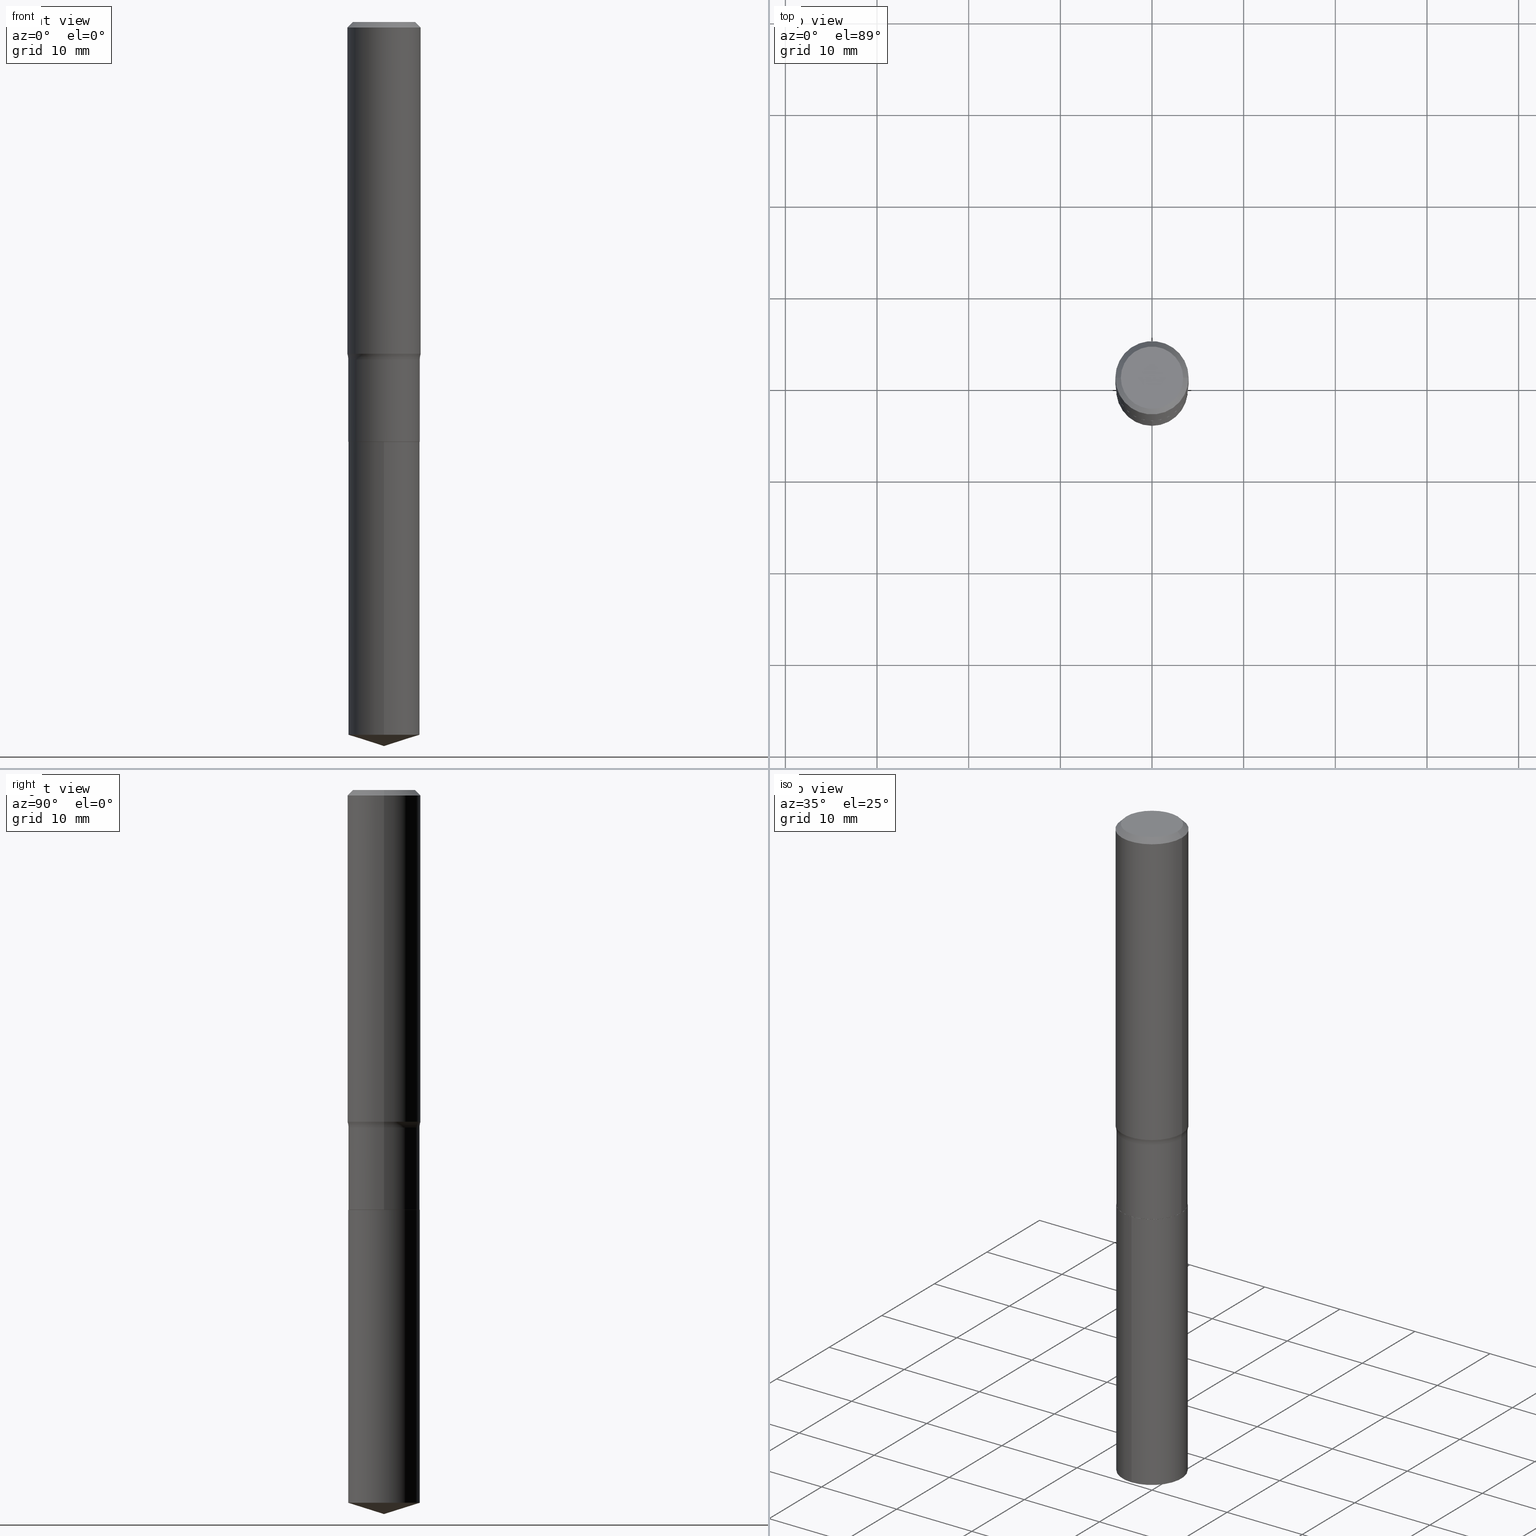
[diagram: canonical four-view strip — front | top / right | iso, engineering-drawing reading convention]
A machine part, canonical four-view strip (front | top / right | iso — engineering-drawing reading convention). The complete STEP part file that produces these views, byte-faithful:
ISO-10303-21;
HEADER;
FILE_DESCRIPTION (( 'STEP AP203' ),
    '1' );
FILE_NAME ('63180.STEP',
    '2024-04-19T14:58:40',
    ( '' ),
    ( '' ),
    'SwSTEP 2.0',
    'SolidWorks 2023',
    '' );
FILE_SCHEMA (( 'CONFIG_CONTROL_DESIGN' ));
ENDSEC;

DATA;
#1 = CIRCLE ( 'NONE', #385, 0.1535499999999999921 ) ;
#2 = DIRECTION ( 'NONE',  ( -6.982962677686265922E-15, -1.000000000000000000, 3.500519750498723365E-15 ) ) ;
#3 = CIRCLE ( 'NONE', #175, 0.1338749999999999940 ) ;
#4 = PERSON_AND_ORGANIZATION ( #279, #53 ) ;
#5 = DIRECTION ( 'NONE',  ( -2.445468806185136877E-29, 3.491481338843145188E-15, 1.000000000000000000 ) ) ;
#6 = AXIS2_PLACEMENT_3D ( 'NONE', #359, #178, #330 ) ;
#7 = AXIS2_PLACEMENT_3D ( 'NONE', #471, #406, #362 ) ;
#8 = DIRECTION ( 'NONE',  ( -2.445468806185136597E-29, 3.491481338843145583E-15, 1.000000000000000000 ) ) ;
#9 = CARTESIAN_POINT ( 'NONE',  ( 0.1530499999999999916, -7.364232439887959378E-15, -1.803100000000000147 ) ) ;
#10 = DIRECTION ( 'NONE',  ( 1.000000000000000000, -6.982962677686269077E-15, 0.000000000000000000 ) ) ;
#11 = FACE_OUTER_BOUND ( 'NONE', #187, .T. ) ;
#12 = CARTESIAN_POINT ( 'NONE',  ( 3.485753895980108822E-29, -4.976732742954058685E-15, -1.425392909189378665 ) ) ;
#13 = EDGE_LOOP ( 'NONE', ( #31, #67, #248, #415 ) ) ;
#14 = DIRECTION ( 'NONE',  ( -2.445468806185136597E-29, 3.491481338843145583E-15, 1.000000000000000000 ) ) ;
#15 = ORIENTED_EDGE ( 'NONE', *, *, #299, .F. ) ;
#16 = CC_DESIGN_APPROVAL ( #474, ( #238 ) ) ;
#17 = LOCAL_TIME ( 10, 58, 40.00000000000000000, #465 ) ;
#18 = EDGE_CURVE ( 'NONE', #383, #460, #448, .T. ) ;
#19 = CARTESIAN_POINT ( 'NONE',  ( 7.606661130427359075E-29, -1.085811109779870242E-14, -3.110199999999999854 ) ) ;
#20 = CYLINDRICAL_SURFACE ( 'NONE', #58, 0.1535499999999999921 ) ;
#21 = DIRECTION ( 'NONE',  ( 0.7071067811865451302, -7.319954787623248157E-15, -0.7071067811865499042 ) ) ;
#22 = MECHANICAL_CONTEXT ( 'NONE', #34, 'mechanical' ) ;
#23 = DIRECTION ( 'NONE',  ( -2.445468806185136597E-29, 3.491481338843145583E-15, 1.000000000000000000 ) ) ;
#24 = VERTEX_POINT ( 'NONE', #486 ) ;
#25 = CARTESIAN_POINT ( 'NONE',  ( 0.2315499999999999503, -6.679203801206931400E-15, -1.449899999999999967 ) ) ;
#26 = VERTEX_POINT ( 'NONE', #98 ) ;
#27 = LINE ( 'NONE', #480, #272 ) ;
#28 = EDGE_CURVE ( 'NONE', #426, #182, #255, .T. ) ;
#29 = VERTEX_POINT ( 'NONE', #194 ) ;
#30 = VECTOR ( 'NONE', #295, 39.37007874015748143 ) ;
#31 = ORIENTED_EDGE ( 'NONE', *, *, #306, .F. ) ;
#32 = DIRECTION ( 'NONE',  ( -6.982962677686266711E-15, -1.000000000000000000, 3.558252026915354491E-15 ) ) ;
#33 = ORIENTED_EDGE ( 'NONE', *, *, #74, .F. ) ;
#34 = APPLICATION_CONTEXT ( 'configuration controlled 3d designs of mechanical parts and assemblies' ) ;
#35 = ORIENTED_EDGE ( 'NONE', *, *, #291, .F. ) ;
#36 = DIRECTION ( 'NONE',  ( -2.445714465445102928E-29, 3.491129540800817350E-15, 1.000000000000000000 ) ) ;
#37 = PRODUCT_DEFINITION ( 'UNKNOWN', '', #48, #202 ) ;
#38 = AXIS2_PLACEMENT_3D ( 'NONE', #363, #328, #447 ) ;
#39 = VERTEX_POINT ( 'NONE', #161 ) ;
#40 = CIRCLE ( 'NONE', #190, 0.1338749999999999940 ) ;
#41 = EDGE_LOOP ( 'NONE', ( #192, #418, #228 ) ) ;
#42 = ORIENTED_EDGE ( 'NONE', *, *, #18, .T. ) ;
#43 = PERSON_AND_ORGANIZATION_ROLE ( 'design_supplier' ) ;
#44 = DIRECTION ( 'NONE',  ( -1.000000000000000000, 6.982962677686265922E-15, 0.000000000000000000 ) ) ;
#45 = DATE_TIME_ROLE ( 'classification_date' ) ;
#46 = AXIS2_PLACEMENT_3D ( 'NONE', #371, #173, #136 ) ;
#47 = PERSON_AND_ORGANIZATION_ROLE ( 'classification_officer' ) ;
#48 = PRODUCT_DEFINITION_FORMATION_WITH_SPECIFIED_SOURCE ( 'ANY', '', #446, .NOT_KNOWN. ) ;
#49 = APPROVAL_DATE_TIME ( #397, #404 ) ;
#50 = CARTESIAN_POINT ( 'NONE',  ( 4.409424804432420683E-29, -6.295490002068076239E-15, -1.803100000000000147 ) ) ;
#51 = EDGE_CURVE ( 'NONE', #311, #94, #485, .T. ) ;
#52 = CARTESIAN_POINT ( 'NONE',  ( 0.1530499999999999916, -7.364232439887959378E-15, -1.803100000000000147 ) ) ;
#53 = ORGANIZATION ( 'UNSPECIFIED', 'UNSPECIFIED', '' ) ;
#54 = ORIENTED_EDGE ( 'NONE', *, *, #224, .F. ) ;
#55 = EDGE_CURVE ( 'NONE', #275, #182, #115, .T. ) ;
#56 = CARTESIAN_POINT ( 'NONE',  ( 7.487811046509325449E-29, -1.068972542879178408E-14, -3.061785870967632217 ) ) ;
#57 = PLANE ( 'NONE',  #243 ) ;
#58 = AXIS2_PLACEMENT_3D ( 'NONE', #65, #246, #410 ) ;
#59 = LOCAL_TIME ( 10, 58, 40.00000000000000000, #218 ) ;
#60 = ADVANCED_FACE ( 'NONE', ( #11 ), #456, .T. ) ;
#61 = DIRECTION ( 'NONE',  ( -2.445468806185136597E-29, 3.491481338843145583E-15, 1.000000000000000000 ) ) ;
#62 = CC_DESIGN_PERSON_AND_ORGANIZATION_ASSIGNMENT ( #203, #84, ( #37 ) ) ;
#63 = APPROVAL_ROLE ( '' ) ;
#64 = DIRECTION ( 'NONE',  ( 1.000000000000000000, -6.982962677686267499E-15, 4.876176775795936353E-29 ) ) ;
#65 = CARTESIAN_POINT ( 'NONE',  ( 4.409424804432419562E-29, -6.295490002068075450E-15, -1.803099999999999925 ) ) ;
#66 = VERTEX_POINT ( 'NONE', #290 ) ;
#67 = ORIENTED_EDGE ( 'NONE', *, *, #51, .T. ) ;
#68 = DIRECTION ( 'NONE',  ( 1.000000000000000000, -6.982962677686265922E-15, 0.000000000000000000 ) ) ;
#69 = VECTOR ( 'NONE', #21, 39.37007874015748143 ) ;
#70 = CIRCLE ( 'NONE', #298, 0.07800000000000002764 ) ;
#71 = LINE ( 'NONE', #365, #364 ) ;
#72 = ORIENTED_EDGE ( 'NONE', *, *, #28, .T. ) ;
#73 = DIRECTION ( 'NONE',  ( 1.000000000000000000, -6.982962677686263555E-15, 0.000000000000000000 ) ) ;
#74 = EDGE_CURVE ( 'NONE', #426, #383, #402, .T. ) ;
#75 = ORIENTED_EDGE ( 'NONE', *, *, #277, .T. ) ;
#76 = DIMENSIONAL_EXPONENTS ( 1.000000000000000000, 0.000000000000000000, 0.000000000000000000, 0.000000000000000000, 0.000000000000000000, 0.000000000000000000, 0.000000000000000000 ) ;
#77 = CIRCLE ( 'NONE', #449, 0.1575000000000001676 ) ;
#78 = FACE_OUTER_BOUND ( 'NONE', #296, .T. ) ;
#79 = DIRECTION ( 'NONE',  ( -6.982962677686266711E-15, -1.000000000000000000, 3.558252026915354491E-15 ) ) ;
#80 = DIRECTION ( 'NONE',  ( -2.445714465445102928E-29, 3.491129540800817350E-15, 1.000000000000000000 ) ) ;
#81 = AXIS2_PLACEMENT_3D ( 'NONE', #251, #337, #64 ) ;
#82 = CIRCLE ( 'NONE', #106, 0.1535499999999999643 ) ;
#83 = DIRECTION ( 'NONE',  ( 1.000000000000000000, -6.982962677686268288E-15, 0.000000000000000000 ) ) ;
#84 = PERSON_AND_ORGANIZATION_ROLE ( 'creator' ) ;
#85 = DIRECTION ( 'NONE',  ( 2.445468806185136597E-29, -3.491481338843145583E-15, -1.000000000000000000 ) ) ;
#86 = CIRCLE ( 'NONE', #376, 0.1535499999999999921 ) ;
#87 = DIRECTION ( 'NONE',  ( 7.105427357601001859E-15, 1.000000000000000000, -3.491481338843145583E-15 ) ) ;
#88 = CONICAL_SURFACE ( 'NONE', #262, 124.8659371009143939, 1.265363707695890128 ) ;
#89 = ADVANCED_FACE ( 'NONE', ( #239 ), #396, .T. ) ;
#90 = CARTESIAN_POINT ( 'NONE',  ( -0.1575000000000000011, -1.410504685969955451E-15, -0.02362500000000014588 ) ) ;
#91 = DIRECTION ( 'NONE',  ( 1.000000000000000000, -6.982962677686266711E-15, 4.883557194083113462E-29 ) ) ;
#92 = PERSON_AND_ORGANIZATION ( #279, #53 ) ;
#93 = CARTESIAN_POINT ( 'NONE',  ( 0.000000000000000000, 0.000000000000000000, 0.000000000000000000 ) ) ;
#94 = VERTEX_POINT ( 'NONE', #52 ) ;
#95 = CARTESIAN_POINT ( 'NONE',  ( 0.1575000000000000011, -1.163014681279185964E-15, -0.02362500000000014588 ) ) ;
#96 = ORIENTED_EDGE ( 'NONE', *, *, #236, .T. ) ;
#97 = DIRECTION ( 'NONE',  ( -0.7071067811865451302, 2.468850131082231817E-15, -0.7071067811865499042 ) ) ;
#98 = CARTESIAN_POINT ( 'NONE',  ( -1.072233919158650810E-15, -0.1535500000000106224, -3.061785870967631773 ) ) ;
#99 = EDGE_LOOP ( 'NONE', ( #171, #96, #15, #347 ) ) ;
#100 = DIRECTION ( 'NONE',  ( -6.982962677686266711E-15, -1.000000000000000000, 3.558252026915354491E-15 ) ) ;
#101 = CARTESIAN_POINT ( 'NONE',  ( 0.1575000000000000844, -1.099816621735587677E-15, 7.679978421878603638E-30 ) ) ;
#102 = ORIENTED_EDGE ( 'NONE', *, *, #342, .T. ) ;
#103 = CC_DESIGN_PERSON_AND_ORGANIZATION_ASSIGNMENT ( #92, #43, ( #48 ) ) ;
#104 = DIRECTION ( 'NONE',  ( -2.445468806185136597E-29, 3.491481338843145583E-15, 1.000000000000000000 ) ) ;
#105 = TOROIDAL_SURFACE ( 'NONE', #318, 0.2315499999999999503, 0.07800000000000002764 ) ;
#106 = AXIS2_PLACEMENT_3D ( 'NONE', #489, #235, #154 ) ;
#107 = DIRECTION ( 'NONE',  ( -2.445468806185136597E-29, 3.491481338843145583E-15, 1.000000000000000000 ) ) ;
#108 = ORIENTED_EDGE ( 'NONE', *, *, #338, .T. ) ;
#109 = DIRECTION ( 'NONE',  ( 1.000000000000000000, -6.982962677686265922E-15, 0.000000000000000000 ) ) ;
#110 = CARTESIAN_POINT ( 'NONE',  ( 7.487811046509325449E-29, -1.068972542879178408E-14, -3.061785870967632217 ) ) ;
#111 = EDGE_LOOP ( 'NONE', ( #490, #343, #370, #388 ) ) ;
#112 = APPROVAL_STATUS ( 'not_yet_approved' ) ;
#113 = ADVANCED_FACE ( 'NONE', ( #470 ), #118, .T. ) ;
#114 = VECTOR ( 'NONE', #5, 39.37007874015748143 ) ;
#115 = LINE ( 'NONE', #95, #69 ) ;
#116 = VECTOR ( 'NONE', #332, 39.37007874015748143 ) ;
#117 = ORIENTED_EDGE ( 'NONE', *, *, #210, .T. ) ;
#118 = CYLINDRICAL_SURFACE ( 'NONE', #461, 0.1535499999999999643 ) ;
#119 = PERSON_AND_ORGANIZATION ( #279, #53 ) ;
#120 = DATE_AND_TIME ( #241, #225 ) ;
#121 = COORDINATED_UNIVERSAL_TIME_OFFSET ( 5, 0, .BEHIND. ) ;
#122 = CARTESIAN_POINT ( 'NONE',  ( 7.606668898693274979E-29, -1.085811109779870242E-14, -3.110199999999999854 ) ) ;
#123 = CALENDAR_DATE ( 2024, 19, 4 ) ;
#124 = CARTESIAN_POINT ( 'NONE',  ( 0.000000000000000000, 0.000000000000000000, 0.000000000000000000 ) ) ;
#125 = VECTOR ( 'NONE', #138, 39.37007874015748143 ) ;
#126 = CC_DESIGN_SECURITY_CLASSIFICATION ( #238, ( #48 ) ) ;
#127 = CARTESIAN_POINT ( 'NONE',  ( -0.1535499999999999643, -4.586983156534031207E-15, -1.449899999999999967 ) ) ;
#128 = APPLICATION_PROTOCOL_DEFINITION ( 'international standard', 'config_control_design', 1994, #223 ) ;
#129 = SECURITY_CLASSIFICATION_LEVEL ( 'unclassified' ) ;
#130 = CARTESIAN_POINT ( 'NONE',  ( -1.072233919158681970E-15, -0.1535500000000062926, -1.803099999999999481 ) ) ;
#131 = CARTESIAN_POINT ( 'NONE',  ( 0.000000000000000000, 0.000000000000000000, 0.000000000000000000 ) ) ;
#132 = EDGE_CURVE ( 'NONE', #66, #149, #211, .T. ) ;
#133 = AXIS2_PLACEMENT_3D ( 'NONE', #339, #304, #73 ) ;
#134 =( LENGTH_UNIT ( ) NAMED_UNIT ( * ) SI_UNIT ( $, .METRE. ) );
#135 = FACE_OUTER_BOUND ( 'NONE', #144, .T. ) ;
#136 = DIRECTION ( 'NONE',  ( 1.000000000000000000, -6.982962677686265922E-15, 0.000000000000000000 ) ) ;
#137 = DIRECTION ( 'NONE',  ( -2.445468806185136597E-29, 3.491481338843145583E-15, 1.000000000000000000 ) ) ;
#138 = DIRECTION ( 'NONE',  ( -2.445468806185136877E-29, 3.491481338843145188E-15, 1.000000000000000000 ) ) ;
#139 = EDGE_CURVE ( 'NONE', #426, #39, #472, .T. ) ;
#140 = ORIENTED_EDGE ( 'NONE', *, *, #242, .T. ) ;
#141 = VECTOR ( 'NONE', #292, 39.37007874015748143 ) ;
#142 = EDGE_LOOP ( 'NONE', ( #268, #429 ) ) ;
#143 = PLANE ( 'NONE',  #308 ) ;
#144 = EDGE_LOOP ( 'NONE', ( #259, #305, #72, #35 ) ) ;
#145 = DIRECTION ( 'NONE',  ( -2.445468806185136597E-29, 3.491481338843145583E-15, 1.000000000000000000 ) ) ;
#146 = ORIENTED_EDGE ( 'NONE', *, *, #468, .T. ) ;
#147 = EDGE_CURVE ( 'NONE', #327, #189, #443, .T. ) ;
#148 = CARTESIAN_POINT ( 'NONE',  ( 4.409424804432419562E-29, -6.295490002068075450E-15, -1.803099999999999925 ) ) ;
#149 = VERTEX_POINT ( 'NONE', #324 ) ;
#150 = DATE_AND_TIME ( #263, #17 ) ;
#151 = CARTESIAN_POINT ( 'NONE',  ( -0.1530499999999999916, -5.205355117813131565E-15, -1.803100000000000147 ) ) ;
#152 = ORIENTED_EDGE ( 'NONE', *, *, #299, .T. ) ;
#153 = ADVANCED_FACE ( 'NONE', ( #135 ), #249, .T. ) ;
#154 = DIRECTION ( 'NONE',  ( 1.000000000000000000, -6.982962677686263555E-15, 0.000000000000000000 ) ) ;
#155 = VERTEX_POINT ( 'NONE', #90 ) ;
#156 = CARTESIAN_POINT ( 'NONE',  ( 4.408202070029327321E-29, -6.293744261398653946E-15, -1.802599999999999980 ) ) ;
#157 = AXIS2_PLACEMENT_3D ( 'NONE', #156, #215, #10 ) ;
#158 = AXIS2_PLACEMENT_3D ( 'NONE', #384, #271, #432 ) ;
#159 = APPROVAL_ROLE ( '' ) ;
#160 = ADVANCED_FACE ( 'NONE', ( #444 ), #105, .F. ) ;
#161 = CARTESIAN_POINT ( 'NONE',  ( -0.1575000000000001676, -3.857627934131899504E-15, -1.425392909189378665 ) ) ;
#162 =( NAMED_UNIT ( * ) PLANE_ANGLE_UNIT ( ) SI_UNIT ( $, .RADIAN. ) );
#163 = DIRECTION ( 'NONE',  ( -2.445468806185136597E-29, 3.491481338843145583E-15, 1.000000000000000000 ) ) ;
#164 = AXIS2_PLACEMENT_3D ( 'NONE', #110, #425, #79 ) ;
#165 = DATE_TIME_ROLE ( 'creation_date' ) ;
#166 = DIRECTION ( 'NONE',  ( -1.000000000000000000, 7.105427357601001859E-15, 0.000000000000000000 ) ) ;
#167 = UNCERTAINTY_MEASURE_WITH_UNIT (LENGTH_MEASURE( 1.000000000000000082E-05 ), #200, 'distance_accuracy_value', 'NONE');
#168 = ADVANCED_FACE ( 'NONE', ( #293 ), #355, .F. ) ;
#169 = CARTESIAN_POINT ( 'NONE',  ( 0.1535499999999999643, -6.134532712347401777E-15, -1.449899999999999967 ) ) ;
#170 = ADVANCED_FACE ( 'NONE', ( #451 ), #20, .T. ) ;
#171 = ORIENTED_EDGE ( 'NONE', *, *, #139, .T. ) ;
#172 = CARTESIAN_POINT ( 'NONE',  ( 1.091038370759677758E-15, 0.1535499999999936915, -1.803100000000000591 ) ) ;
#173 = DIRECTION ( 'NONE',  ( -2.445468806185136597E-29, 3.491481338843145583E-15, 1.000000000000000000 ) ) ;
#174 = AXIS2_PLACEMENT_3D ( 'NONE', #469, #440, #379 ) ;
#175 = AXIS2_PLACEMENT_3D ( 'NONE', #357, #14, #282 ) ;
#176 = EDGE_LOOP ( 'NONE', ( #302, #146, #108, #33 ) ) ;
#177 = CARTESIAN_POINT ( 'NONE',  ( 5.777420054612421104E-31, -8.248624663016984002E-17, -0.02362500000000014588 ) ) ;
#178 = DIRECTION ( 'NONE',  ( -2.445468806185136597E-29, 3.491481338843145583E-15, 1.000000000000000000 ) ) ;
#179 = LINE ( 'NONE', #221, #116 ) ;
#180 = FACE_OUTER_BOUND ( 'NONE', #99, .T. ) ;
#181 = CIRCLE ( 'NONE', #462, 0.1535499999999999921 ) ;
#182 = VERTEX_POINT ( 'NONE', #219 ) ;
#183 = DIRECTION ( 'NONE',  ( -2.445468806185136877E-29, 3.491481338843145188E-15, 1.000000000000000000 ) ) ;
#184 = ORIENTED_EDGE ( 'NONE', *, *, #55, .F. ) ;
#185 = DIRECTION ( 'NONE',  ( -6.659769872151628144E-15, -0.9537169507482261555, 0.3007057995042753396 ) ) ;
#186 = ORIENTED_EDGE ( 'NONE', *, *, #191, .T. ) ;
#187 = EDGE_LOOP ( 'NONE', ( #479, #226, #244, #340 ) ) ;
#188 = ORIENTED_EDGE ( 'NONE', *, *, #242, .F. ) ;
#189 = VERTEX_POINT ( 'NONE', #407 ) ;
#190 = AXIS2_PLACEMENT_3D ( 'NONE', #341, #61, #217 ) ;
#191 = EDGE_CURVE ( 'NONE', #26, #29, #245, .T. ) ;
#192 = ORIENTED_EDGE ( 'NONE', *, *, #277, .F. ) ;
#193 = CARTESIAN_POINT ( 'NONE',  ( -0.2315499999999999503, -3.417037088536164989E-15, -1.449899999999999967 ) ) ;
#194 = CARTESIAN_POINT ( 'NONE',  ( -1.072233919158681970E-15, -0.1535500000000062926, -1.803099999999999481 ) ) ;
#195 = ADVANCED_FACE ( 'NONE', ( #212 ), #143, .F. ) ;
#196 = COORDINATED_UNIVERSAL_TIME_OFFSET ( 5, 0, .BEHIND. ) ;
#197 = DIRECTION ( 'NONE',  ( -6.982962677686266711E-15, -1.000000000000000000, 3.491481338843145583E-15 ) ) ;
#198 = AXIS2_PLACEMENT_3D ( 'NONE', #25, #197, #83 ) ;
#199 = CIRCLE ( 'NONE', #164, 0.1535499999999999921 ) ;
#200 =( CONVERSION_BASED_UNIT ( 'INCH', #475 ) LENGTH_UNIT ( ) NAMED_UNIT ( #76 ) );
#201 = DIRECTION ( 'NONE',  ( 6.776566513254254982E-15, 0.9537169507482283759, 0.3007057995042687337 ) ) ;
#202 = DESIGN_CONTEXT ( 'detailed design', #223, 'design' ) ;
#203 = PERSON_AND_ORGANIZATION ( #279, #53 ) ;
#204 = ADVANCED_FACE ( 'NONE', ( #180 ), #377, .T. ) ;
#205 =( NAMED_UNIT ( * ) SI_UNIT ( $, .STERADIAN. ) SOLID_ANGLE_UNIT ( ) );
#206 = DIRECTION ( 'NONE',  ( 0.000000000000000000, 0.000000000000000000, 1.000000000000000000 ) ) ;
#207 = DIRECTION ( 'NONE',  ( 1.000000000000000000, -6.982962677686266711E-15, 4.883557194083113462E-29 ) ) ;
#208 = VECTOR ( 'NONE', #478, 39.37007874015748143 ) ;
#209 = EDGE_CURVE ( 'NONE', #149, #460, #71, .T. ) ;
#210 = EDGE_CURVE ( 'NONE', #149, #66, #86, .T. ) ;
#211 = CIRCLE ( 'NONE', #157, 0.1535499999999999921 ) ;
#212 = FACE_OUTER_BOUND ( 'NONE', #300, .T. ) ;
#213 =( GEOMETRIC_REPRESENTATION_CONTEXT ( 3 ) GLOBAL_UNCERTAINTY_ASSIGNED_CONTEXT ( ( #167 ) ) GLOBAL_UNIT_ASSIGNED_CONTEXT ( ( #200, #162, #205 ) ) REPRESENTATION_CONTEXT ( 'NONE', 'WORKASPACE' ) );
#214 = CARTESIAN_POINT ( 'NONE',  ( -5.014852121625163022E-47, 7.159879756154476955E-33, 2.050671065172241055E-18 ) ) ;
#215 = DIRECTION ( 'NONE',  ( -2.445468806185136597E-29, 3.491481338843145583E-15, 1.000000000000000000 ) ) ;
#216 = ADVANCED_FACE ( 'NONE', ( #307 ), #280, .F. ) ;
#217 = DIRECTION ( 'NONE',  ( 1.000000000000000000, -6.982962677686266711E-15, 4.876170806578254279E-29 ) ) ;
#218 = COORDINATED_UNIVERSAL_TIME_OFFSET ( 5, 0, .BEHIND. ) ;
#219 = CARTESIAN_POINT ( 'NONE',  ( 0.1575000000000000011, -1.182302868365756679E-15, -0.02362500000000014588 ) ) ;
#220 = VERTEX_POINT ( 'NONE', #19 ) ;
#221 = CARTESIAN_POINT ( 'NONE',  ( -0.1530499999999999916, -5.208004344987242767E-15, -1.803100000000000147 ) ) ;
#222 = PRODUCT_RELATED_PRODUCT_CATEGORY ( 'detail', '', ( #446 ) ) ;
#223 = APPLICATION_CONTEXT ( 'configuration controlled 3d designs of mechanical parts and assemblies' ) ;
#224 = EDGE_CURVE ( 'NONE', #327, #26, #1, .T. ) ;
#225 = LOCAL_TIME ( 10, 58, 40.00000000000000000, #121 ) ;
#226 = ORIENTED_EDGE ( 'NONE', *, *, #306, .T. ) ;
#227 = LINE ( 'NONE', #484, #441 ) ;
#228 = ORIENTED_EDGE ( 'NONE', *, *, #333, .F. ) ;
#229 = ORIENTED_EDGE ( 'NONE', *, *, #286, .F. ) ;
#230 = CLOSED_SHELL ( 'NONE', ( #60, #481, #204, #216, #113, #270, #160, #153, #467, #389, #168, #405 ) ) ;
#231 = VECTOR ( 'NONE', #201, 39.37007874015747433 ) ;
#232 = DIRECTION ( 'NONE',  ( -2.445468806185136597E-29, 3.491481338843145583E-15, 1.000000000000000000 ) ) ;
#233 = CARTESIAN_POINT ( 'NONE',  ( 4.409424804432420683E-29, -6.295490002068076239E-15, -1.803100000000000147 ) ) ;
#234 = CARTESIAN_POINT ( 'NONE',  ( 5.777420054612421104E-31, -8.248624663016984002E-17, -0.02362500000000014588 ) ) ;
#235 = DIRECTION ( 'NONE',  ( -2.445468806185136597E-29, 3.491481338843145583E-15, 1.000000000000000000 ) ) ;
#236 = EDGE_CURVE ( 'NONE', #39, #155, #445, .T. ) ;
#237 = APPROVAL_PERSON_ORGANIZATION ( #264, #474, #63 ) ;
#238 = SECURITY_CLASSIFICATION ( '', '', #129 ) ;
#239 = FACE_OUTER_BOUND ( 'NONE', #254, .T. ) ;
#240 = FACE_OUTER_BOUND ( 'NONE', #142, .T. ) ;
#241 = CALENDAR_DATE ( 2024, 19, 4 ) ;
#242 = EDGE_CURVE ( 'NONE', #24, #155, #450, .T. ) ;
#243 = AXIS2_PLACEMENT_3D ( 'NONE', #214, #400, #322 ) ;
#244 = ORIENTED_EDGE ( 'NONE', *, *, #132, .F. ) ;
#245 = LINE ( 'NONE', #130, #208 ) ;
#246 = DIRECTION ( 'NONE',  ( -2.445714465445102928E-29, 3.491129540800817350E-15, 1.000000000000000000 ) ) ;
#247 = EDGE_CURVE ( 'NONE', #66, #383, #227, .T. ) ;
#248 = ORIENTED_EDGE ( 'NONE', *, *, #380, .T. ) ;
#249 = CYLINDRICAL_SURFACE ( 'NONE', #38, 0.1575000000000000844 ) ;
#250 = DIRECTION ( 'NONE',  ( -2.445714465445102928E-29, 3.491129540800817350E-15, 1.000000000000000000 ) ) ;
#251 = CARTESIAN_POINT ( 'NONE',  ( 0.000000000000000000, 0.000000000000000000, 0.000000000000000000 ) ) ;
#252 = APPROVAL_STATUS ( 'not_yet_approved' ) ;
#253 = DIRECTION ( 'NONE',  ( 2.445714465445102087E-29, -3.491129540800817745E-15, -1.000000000000000000 ) ) ;
#254 = EDGE_LOOP ( 'NONE', ( #336, #75, #54 ) ) ;
#255 = LINE ( 'NONE', #101, #114 ) ;
#256 = ORIENTED_EDGE ( 'NONE', *, *, #132, .T. ) ;
#257 = DIRECTION ( 'NONE',  ( 6.982962677686265922E-15, 1.000000000000000000, -3.491129540800817745E-15 ) ) ;
#258 = ORIENTED_EDGE ( 'NONE', *, *, #18, .F. ) ;
#259 = ORIENTED_EDGE ( 'NONE', *, *, #236, .F. ) ;
#260 = CARTESIAN_POINT ( 'NONE',  ( -8.868175289830015705E-28, 1.265872994885691818E-13, 36.25987874015748247 ) ) ;
#261 = CLOSED_SHELL ( 'NONE', ( #170, #436, #89, #325, #195 ) ) ;
#262 = AXIS2_PLACEMENT_3D ( 'NONE', #278, #80, #317 ) ;
#263 = CALENDAR_DATE ( 2024, 19, 4 ) ;
#264 = PERSON_AND_ORGANIZATION ( #279, #53 ) ;
#265 = ORIENTED_EDGE ( 'NONE', *, *, #147, .F. ) ;
#266 = ORIENTED_EDGE ( 'NONE', *, *, #310, .T. ) ;
#267 = CC_DESIGN_PERSON_AND_ORGANIZATION_ASSIGNMENT ( #119, #47, ( #238 ) ) ;
#268 = ORIENTED_EDGE ( 'NONE', *, *, #286, .T. ) ;
#269 = DIRECTION ( 'NONE',  ( -2.445714465445102928E-29, 3.491129540800817350E-15, 1.000000000000000000 ) ) ;
#270 = ADVANCED_FACE ( 'NONE', ( #303 ), #409, .T. ) ;
#271 = DIRECTION ( 'NONE',  ( -2.445468806185136597E-29, 3.491481338843145583E-15, 1.000000000000000000 ) ) ;
#272 = VECTOR ( 'NONE', #185, 39.37007874015748143 ) ;
#273 = COORDINATED_UNIVERSAL_TIME_OFFSET ( 5, 0, .BEHIND. ) ;
#274 = CIRCLE ( 'NONE', #158, 0.1530499999999999916 ) ;
#275 = VERTEX_POINT ( 'NONE', #382 ) ;
#276 = DATE_AND_TIME ( #123, #422 ) ;
#277 = EDGE_CURVE ( 'NONE', #220, #26, #27, .T. ) ;
#278 = CARTESIAN_POINT ( 'NONE',  ( -8.868175289830015705E-28, 1.265872994885691818E-13, 36.25987874015748247 ) ) ;
#279 = PERSON ( 'UNSPECIFIED', 'UNSPECIFIED', 'UNSPECIFIED', ('UNSPECIFIED'), ('UNSPECIFIED'), ('UNSPECIFIED') ) ;
#280 = TOROIDAL_SURFACE ( 'NONE', #344, 0.2315499999999999503, 0.07800000000000002764 ) ;
#281 = CC_DESIGN_APPROVAL ( #368, ( #48 ) ) ;
#282 = DIRECTION ( 'NONE',  ( 1.000000000000000000, -6.982962677686266711E-15, 4.876170806578254279E-29 ) ) ;
#283 = APPROVAL_STATUS ( 'not_yet_approved' ) ;
#284 = CALENDAR_DATE ( 2024, 19, 4 ) ;
#285 = AXIS2_PLACEMENT_3D ( 'NONE', #93, #411, #297 ) ;
#286 = EDGE_CURVE ( 'NONE', #24, #275, #40, .T. ) ;
#287 = AXIS2_PLACEMENT_3D ( 'NONE', #234, #390, #44 ) ;
#288 = DIRECTION ( 'NONE',  ( -1.000000000000000000, 6.982962677686265922E-15, 0.000000000000000000 ) ) ;
#289 = LINE ( 'NONE', #9, #141 ) ;
#290 = CARTESIAN_POINT ( 'NONE',  ( 0.1535499999999999921, -7.365978180557380092E-15, -1.802599999999999980 ) ) ;
#291 = EDGE_CURVE ( 'NONE', #155, #182, #356, .T. ) ;
#292 = DIRECTION ( 'NONE',  ( 0.7071067811864267805, -2.468850131080992517E-15, 0.7071067811866682540 ) ) ;
#293 = FACE_OUTER_BOUND ( 'NONE', #424, .T. ) ;
#294 = FACE_OUTER_BOUND ( 'NONE', #13, .T. ) ;
#295 = DIRECTION ( 'NONE',  ( -2.445714465445102928E-29, 3.491129540800817745E-15, 1.000000000000000000 ) ) ;
#296 = EDGE_LOOP ( 'NONE', ( #184, #229, #140, #421 ) ) ;
#297 = DIRECTION ( 'NONE',  ( 1.000000000000000000, -6.982962677686267499E-15, 4.876176775795935793E-29 ) ) ;
#298 = AXIS2_PLACEMENT_3D ( 'NONE', #193, #87, #166 ) ;
#299 = EDGE_CURVE ( 'NONE', #182, #155, #386, .T. ) ;
#300 = EDGE_LOOP ( 'NONE', ( #102, #266 ) ) ;
#301 = CARTESIAN_POINT ( 'NONE',  ( 4.408202070029327321E-29, -6.293744261398653946E-15, -1.802599999999999980 ) ) ;
#302 = ORIENTED_EDGE ( 'NONE', *, *, #354, .F. ) ;
#303 = FACE_OUTER_BOUND ( 'NONE', #312, .T. ) ;
#304 = DIRECTION ( 'NONE',  ( -2.445468806185136597E-29, 3.491481338843145583E-15, 1.000000000000000000 ) ) ;
#305 = ORIENTED_EDGE ( 'NONE', *, *, #354, .T. ) ;
#306 = EDGE_CURVE ( 'NONE', #311, #149, #179, .T. ) ;
#307 = FACE_OUTER_BOUND ( 'NONE', #176, .T. ) ;
#308 = AXIS2_PLACEMENT_3D ( 'NONE', #329, #253, #257 ) ;
#309 = AXIS2_PLACEMENT_3D ( 'NONE', #233, #107, #109 ) ;
#310 = EDGE_CURVE ( 'NONE', #189, #29, #181, .T. ) ;
#311 = VERTEX_POINT ( 'NONE', #151 ) ;
#312 = EDGE_LOOP ( 'NONE', ( #361, #117, #381, #348 ) ) ;
#313 = CONICAL_SURFACE ( 'NONE', #287, 0.1575000000000000011, 0.7853981633974449483 ) ;
#314 = CC_DESIGN_DATE_AND_TIME_ASSIGNMENT ( #150, #45, ( #238 ) ) ;
#315 = CALENDAR_DATE ( 2024, 19, 4 ) ;
#316 = DIRECTION ( 'NONE',  ( 1.000000000000000000, -6.982962677686265922E-15, 0.000000000000000000 ) ) ;
#317 = DIRECTION ( 'NONE',  ( -6.982962677686265922E-15, -1.000000000000000000, 3.500519750498723365E-15 ) ) ;
#318 = AXIS2_PLACEMENT_3D ( 'NONE', #367, #163, #207 ) ;
#319 = AXIS2_PLACEMENT_3D ( 'NONE', #369, #145, #420 ) ;
#320 = DIRECTION ( 'NONE',  ( 1.000000000000000000, -6.982962677686267499E-15, 0.000000000000000000 ) ) ;
#321 = PERSON_AND_ORGANIZATION ( #279, #53 ) ;
#322 = DIRECTION ( 'NONE',  ( -1.000000000000000000, 6.982962677686265922E-15, -4.876176775795935793E-29 ) ) ;
#323 = ORIENTED_EDGE ( 'NONE', *, *, #423, .F. ) ;
#324 = CARTESIAN_POINT ( 'NONE',  ( -0.1535500000000000198, -4.586983156534031207E-15, -1.802599999999999980 ) ) ;
#325 = ADVANCED_FACE ( 'NONE', ( #434 ), #438, .T. ) ;
#326 = AXIS2_PLACEMENT_3D ( 'NONE', #177, #85, #288 ) ;
#327 = VERTEX_POINT ( 'NONE', #458 ) ;
#328 = DIRECTION ( 'NONE',  ( -2.445468806185136597E-29, 3.491481338843145583E-15, 1.000000000000000000 ) ) ;
#329 = CARTESIAN_POINT ( 'NONE',  ( 4.409424804432419562E-29, -6.295490002068075450E-15, -1.803099999999999925 ) ) ;
#330 = DIRECTION ( 'NONE',  ( 1.000000000000000000, -6.982962677686267499E-15, 0.000000000000000000 ) ) ;
#331 = ORIENTED_EDGE ( 'NONE', *, *, #55, .T. ) ;
#332 = DIRECTION ( 'NONE',  ( -0.7071067811864267805, 7.493145998869918709E-15, 0.7071067811866682540 ) ) ;
#333 = EDGE_CURVE ( 'NONE', #26, #327, #199, .T. ) ;
#334 = LOCAL_TIME ( 10, 58, 40.00000000000000000, #196 ) ;
#335 = ORIENTED_EDGE ( 'NONE', *, *, #468, .F. ) ;
#336 = ORIENTED_EDGE ( 'NONE', *, *, #439, .F. ) ;
#337 = DIRECTION ( 'NONE',  ( -2.445468806185136597E-29, 3.491481338843145583E-15, 1.000000000000000000 ) ) ;
#338 = EDGE_CURVE ( 'NONE', #460, #383, #82, .T. ) ;
#339 = CARTESIAN_POINT ( 'NONE',  ( 3.545685222087829505E-29, -5.062298793188676419E-15, -1.449899999999999967 ) ) ;
#340 = ORIENTED_EDGE ( 'NONE', *, *, #380, .F. ) ;
#341 = CARTESIAN_POINT ( 'NONE',  ( -1.002970424325032604E-46, 1.431975951230895391E-32, 4.101342130344482109E-18 ) ) ;
#342 = EDGE_CURVE ( 'NONE', #29, #189, #398, .T. ) ;
#343 = ORIENTED_EDGE ( 'NONE', *, *, #147, .T. ) ;
#344 = AXIS2_PLACEMENT_3D ( 'NONE', #455, #104, #91 ) ;
#345 = AXIS2_PLACEMENT_3D ( 'NONE', #435, #269, #430 ) ;
#346 = ADVANCED_BREP_SHAPE_REPRESENTATION ( '63180', ( #387, #378, #457 ), #213 ) ;
#347 = ORIENTED_EDGE ( 'NONE', *, *, #28, .F. ) ;
#348 = ORIENTED_EDGE ( 'NONE', *, *, #338, .F. ) ;
#349 = CC_DESIGN_PERSON_AND_ORGANIZATION_ASSIGNMENT ( #351, #399, ( #48 ) ) ;
#350 = CONICAL_SURFACE ( 'NONE', #309, 0.1530499999999999916, 0.7853981633972775267 ) ;
#351 = PERSON_AND_ORGANIZATION ( #279, #53 ) ;
#352 = CARTESIAN_POINT ( 'NONE',  ( 0.1575000000000001676, -6.076549364689645377E-15, -1.425392909189378665 ) ) ;
#353 = APPROVAL_ROLE ( '' ) ;
#354 = EDGE_CURVE ( 'NONE', #39, #426, #77, .T. ) ;
#355 = PLANE ( 'NONE',  #174 ) ;
#356 = CIRCLE ( 'NONE', #319, 0.1575000000000000011 ) ;
#357 = CARTESIAN_POINT ( 'NONE',  ( -1.002970424325032604E-46, 1.431975951230895391E-32, 4.101342130344482109E-18 ) ) ;
#358 = ORIENTED_EDGE ( 'NONE', *, *, #360, .F. ) ;
#359 = CARTESIAN_POINT ( 'NONE',  ( 3.485753895980108822E-29, -4.976732742954058685E-15, -1.425392909189378665 ) ) ;
#360 = EDGE_CURVE ( 'NONE', #275, #24, #3, .T. ) ;
#361 = ORIENTED_EDGE ( 'NONE', *, *, #209, .F. ) ;
#362 = DIRECTION ( 'NONE',  ( -6.982962677686266711E-15, -1.000000000000000000, 3.558252026915354491E-15 ) ) ;
#363 = CARTESIAN_POINT ( 'NONE',  ( 0.000000000000000000, 0.000000000000000000, 0.000000000000000000 ) ) ;
#364 = VECTOR ( 'NONE', #183, 39.37007874015748143 ) ;
#365 = CARTESIAN_POINT ( 'NONE',  ( -0.1535499999999999643, 1.091038370759633582E-15, -7.553024831086406471E-30 ) ) ;
#366 = EDGE_LOOP ( 'NONE', ( #265, #476, #186, #375 ) ) ;
#367 = CARTESIAN_POINT ( 'NONE',  ( 3.545685222087829505E-29, -5.062298793188676419E-15, -1.449899999999999967 ) ) ;
#368 = APPROVAL ( #112, 'UNSPECIFIED' ) ;
#369 = CARTESIAN_POINT ( 'NONE',  ( 5.777420054612421104E-31, -8.248624663016984002E-17, -0.02362500000000014588 ) ) ;
#370 = ORIENTED_EDGE ( 'NONE', *, *, #342, .F. ) ;
#371 = CARTESIAN_POINT ( 'NONE',  ( 4.409424804432420683E-29, -6.295490002068076239E-15, -1.803100000000000147 ) ) ;
#372 = PERSON_AND_ORGANIZATION ( #279, #53 ) ;
#373 = EDGE_LOOP ( 'NONE', ( #358, #331, #152, #188 ) ) ;
#374 = DIRECTION ( 'NONE',  ( -2.445468806185136877E-29, 3.491481338843145188E-15, 1.000000000000000000 ) ) ;
#375 = ORIENTED_EDGE ( 'NONE', *, *, #310, .F. ) ;
#376 = AXIS2_PLACEMENT_3D ( 'NONE', #301, #477, #414 ) ;
#377 = CYLINDRICAL_SURFACE ( 'NONE', #81, 0.1575000000000000844 ) ;
#378 = MANIFOLD_SOLID_BREP ( 'Body-Move/Copy2[2]', #230 ) ;
#379 = DIRECTION ( 'NONE',  ( 1.000000000000000000, -6.982962677686265922E-15, 4.876176775795935793E-29 ) ) ;
#380 = EDGE_CURVE ( 'NONE', #94, #66, #289, .T. ) ;
#381 = ORIENTED_EDGE ( 'NONE', *, *, #247, .T. ) ;
#382 = CARTESIAN_POINT ( 'NONE',  ( 0.1338749999999999940, -1.040731925365424925E-15, 4.101342130351390035E-18 ) ) ;
#383 = VERTEX_POINT ( 'NONE', #169 ) ;
#384 = CARTESIAN_POINT ( 'NONE',  ( 4.409424804432420683E-29, -6.295490002068076239E-15, -1.803100000000000147 ) ) ;
#385 = AXIS2_PLACEMENT_3D ( 'NONE', #56, #36, #100 ) ;
#386 = CIRCLE ( 'NONE', #403, 0.1575000000000000011 ) ;
#387 = MANIFOLD_SOLID_BREP ( 'Body-Move/Copy2[1]', #261 ) ;
#388 = ORIENTED_EDGE ( 'NONE', *, *, #191, .F. ) ;
#389 = ADVANCED_FACE ( 'NONE', ( #240 ), #57, .F. ) ;
#390 = DIRECTION ( 'NONE',  ( 2.445468806185136597E-29, -3.491481338843145583E-15, -1.000000000000000000 ) ) ;
#391 = DIRECTION ( 'NONE',  ( -2.445714465445102928E-29, 3.491129540800817350E-15, 1.000000000000000000 ) ) ;
#392 = APPROVAL_DATE_TIME ( #433, #474 ) ;
#393 = ORIENTED_EDGE ( 'NONE', *, *, #247, .F. ) ;
#394 = APPROVAL_DATE_TIME ( #276, #368 ) ;
#395 = LINE ( 'NONE', #122, #231 ) ;
#396 = CONICAL_SURFACE ( 'NONE', #466, 124.8659371009143939, 1.265363707695890128 ) ;
#397 = DATE_AND_TIME ( #315, #334 ) ;
#398 = CIRCLE ( 'NONE', #7, 0.1535499999999999921 ) ;
#399 = PERSON_AND_ORGANIZATION_ROLE ( 'creator' ) ;
#400 = DIRECTION ( 'NONE',  ( 2.438088387897960049E-29, -3.491481338843145188E-15, -1.000000000000000000 ) ) ;
#401 = APPLICATION_PROTOCOL_DEFINITION ( 'international standard', 'config_control_design', 1994, #34 ) ;
#402 = CIRCLE ( 'NONE', #198, 0.07800000000000002764 ) ;
#403 = AXIS2_PLACEMENT_3D ( 'NONE', #453, #23, #68 ) ;
#404 = APPROVAL ( #283, 'UNSPECIFIED' ) ;
#405 = ADVANCED_FACE ( 'NONE', ( #294 ), #350, .T. ) ;
#406 = DIRECTION ( 'NONE',  ( -2.445714465445102928E-29, 3.491129540800817350E-15, 1.000000000000000000 ) ) ;
#407 = CARTESIAN_POINT ( 'NONE',  ( 1.091038370759708918E-15, 0.1535499999999937193, -1.803100000000000591 ) ) ;
#408 = ORIENTED_EDGE ( 'NONE', *, *, #139, .F. ) ;
#409 = CYLINDRICAL_SURFACE ( 'NONE', #285, 0.1535499999999999643 ) ;
#410 = DIRECTION ( 'NONE',  ( -6.982962677686266711E-15, -1.000000000000000000, 3.558252026915354491E-15 ) ) ;
#411 = DIRECTION ( 'NONE',  ( -2.445468806185136597E-29, 3.491481338843145583E-15, 1.000000000000000000 ) ) ;
#412 = FACE_OUTER_BOUND ( 'NONE', #373, .T. ) ;
#413 = PRODUCT_DEFINITION_SHAPE ( 'NONE', 'NONE',  #37 ) ;
#414 = DIRECTION ( 'NONE',  ( 1.000000000000000000, -6.982962677686269077E-15, 0.000000000000000000 ) ) ;
#415 = ORIENTED_EDGE ( 'NONE', *, *, #210, .F. ) ;
#416 = CC_DESIGN_PERSON_AND_ORGANIZATION_ASSIGNMENT ( #372, #463, ( #446 ) ) ;
#417 = CARTESIAN_POINT ( 'NONE',  ( -0.1575000000000000011, 1.017330375105417098E-15, -0.02362500000000014588 ) ) ;
#418 = ORIENTED_EDGE ( 'NONE', *, *, #439, .T. ) ;
#419 = VECTOR ( 'NONE', #97, 39.37007874015748143 ) ;
#420 = DIRECTION ( 'NONE',  ( 1.000000000000000000, -6.982962677686265922E-15, 0.000000000000000000 ) ) ;
#421 = ORIENTED_EDGE ( 'NONE', *, *, #291, .T. ) ;
#422 = LOCAL_TIME ( 10, 58, 40.00000000000000000, #273 ) ;
#423 = EDGE_CURVE ( 'NONE', #94, #311, #274, .T. ) ;
#424 = EDGE_LOOP ( 'NONE', ( #323, #454 ) ) ;
#425 = DIRECTION ( 'NONE',  ( -2.445714465445102928E-29, 3.491129540800817350E-15, 1.000000000000000000 ) ) ;
#426 = VERTEX_POINT ( 'NONE', #352 ) ;
#427 = AXIS2_PLACEMENT_3D ( 'NONE', #50, #8, #316 ) ;
#428 = CONICAL_SURFACE ( 'NONE', #326, 0.1575000000000000011, 0.7853981633974449483 ) ;
#429 = ORIENTED_EDGE ( 'NONE', *, *, #360, .T. ) ;
#430 = DIRECTION ( 'NONE',  ( -6.982962677686266711E-15, -1.000000000000000000, 3.558252026915354491E-15 ) ) ;
#431 = SHAPE_DEFINITION_REPRESENTATION ( #413, #346 ) ;
#432 = DIRECTION ( 'NONE',  ( 1.000000000000000000, -6.982962677686265922E-15, 0.000000000000000000 ) ) ;
#433 = DATE_AND_TIME ( #284, #59 ) ;
#434 = FACE_OUTER_BOUND ( 'NONE', #366, .T. ) ;
#435 = CARTESIAN_POINT ( 'NONE',  ( 4.409424804432419562E-29, -6.295490002068075450E-15, -1.803099999999999925 ) ) ;
#436 = ADVANCED_FACE ( 'NONE', ( #464 ), #88, .T. ) ;
#437 = DIRECTION ( 'NONE',  ( 1.000000000000000000, 0.000000000000000000, 0.000000000000000000 ) ) ;
#438 = CYLINDRICAL_SURFACE ( 'NONE', #345, 0.1535499999999999921 ) ;
#439 = EDGE_CURVE ( 'NONE', #220, #327, #395, .T. ) ;
#440 = DIRECTION ( 'NONE',  ( -2.438088387897960049E-29, 3.491481338843145188E-15, 1.000000000000000000 ) ) ;
#441 = VECTOR ( 'NONE', #374, 39.37007874015748143 ) ;
#442 = CC_DESIGN_APPROVAL ( #404, ( #37 ) ) ;
#443 = LINE ( 'NONE', #172, #30 ) ;
#444 = FACE_OUTER_BOUND ( 'NONE', #482, .T. ) ;
#445 = LINE ( 'NONE', #483, #125 ) ;
#446 = PRODUCT ( '63180', '63180', '', ( #22 ) ) ;
#447 = DIRECTION ( 'NONE',  ( 1.000000000000000000, -6.982962677686267499E-15, 4.876176775795936353E-29 ) ) ;
#448 = CIRCLE ( 'NONE', #133, 0.1535499999999999643 ) ;
#449 = AXIS2_PLACEMENT_3D ( 'NONE', #12, #137, #320 ) ;
#450 = LINE ( 'NONE', #417, #419 ) ;
#451 = FACE_OUTER_BOUND ( 'NONE', #111, .T. ) ;
#452 = ORIENTED_EDGE ( 'NONE', *, *, #74, .T. ) ;
#453 = CARTESIAN_POINT ( 'NONE',  ( 5.777420054612421104E-31, -8.248624663016984002E-17, -0.02362500000000014588 ) ) ;
#454 = ORIENTED_EDGE ( 'NONE', *, *, #51, .F. ) ;
#455 = CARTESIAN_POINT ( 'NONE',  ( 3.545685222087829505E-29, -5.062298793188676419E-15, -1.449899999999999967 ) ) ;
#456 = CONICAL_SURFACE ( 'NONE', #46, 0.1530499999999999916, 0.7853981633972775267 ) ;
#457 = AXIS2_PLACEMENT_3D ( 'NONE', #124, #206, #437 ) ;
#458 = CARTESIAN_POINT ( 'NONE',  ( 1.091038370759708129E-15, 0.1535499999999892229, -3.061785870967633105 ) ) ;
#459 = EDGE_LOOP ( 'NONE', ( #256, #487, #258, #393 ) ) ;
#460 = VERTEX_POINT ( 'NONE', #127 ) ;
#461 = AXIS2_PLACEMENT_3D ( 'NONE', #131, #232, #491 ) ;
#462 = AXIS2_PLACEMENT_3D ( 'NONE', #148, #250, #32 ) ;
#463 = PERSON_AND_ORGANIZATION_ROLE ( 'design_owner' ) ;
#464 = FACE_OUTER_BOUND ( 'NONE', #41, .T. ) ;
#465 = COORDINATED_UNIVERSAL_TIME_OFFSET ( 5, 0, .BEHIND. ) ;
#466 = AXIS2_PLACEMENT_3D ( 'NONE', #260, #391, #2 ) ;
#467 = ADVANCED_FACE ( 'NONE', ( #78 ), #313, .T. ) ;
#468 = EDGE_CURVE ( 'NONE', #39, #460, #70, .T. ) ;
#469 = CARTESIAN_POINT ( 'NONE',  ( 2.162012621318008358E-29, -9.513912163045556497E-15, -1.803100000000000147 ) ) ;
#470 = FACE_OUTER_BOUND ( 'NONE', #459, .T. ) ;
#471 = CARTESIAN_POINT ( 'NONE',  ( 4.409424804432419562E-29, -6.295490002068075450E-15, -1.803099999999999925 ) ) ;
#472 = CIRCLE ( 'NONE', #6, 0.1575000000000001676 ) ;
#473 = APPROVAL_PERSON_ORGANIZATION ( #4, #404, #159 ) ;
#474 = APPROVAL ( #252, 'UNSPECIFIED' ) ;
#475 = LENGTH_MEASURE_WITH_UNIT ( LENGTH_MEASURE( 0.02539999999999999897 ), #134 );
#476 = ORIENTED_EDGE ( 'NONE', *, *, #224, .T. ) ;
#477 = DIRECTION ( 'NONE',  ( -2.445468806185136597E-29, 3.491481338843145583E-15, 1.000000000000000000 ) ) ;
#478 = DIRECTION ( 'NONE',  ( -2.445714465445102928E-29, 3.491129540800817745E-15, 1.000000000000000000 ) ) ;
#479 = ORIENTED_EDGE ( 'NONE', *, *, #423, .T. ) ;
#480 = CARTESIAN_POINT ( 'NONE',  ( 7.605775234004069295E-29, -1.085937975189894775E-14, -3.110199999999999854 ) ) ;
#481 = ADVANCED_FACE ( 'NONE', ( #412 ), #428, .T. ) ;
#482 = EDGE_LOOP ( 'NONE', ( #335, #408, #452, #42 ) ) ;
#483 = CARTESIAN_POINT ( 'NONE',  ( -0.1575000000000000844, 1.119104808822158392E-15, -7.747322767151481189E-30 ) ) ;
#484 = CARTESIAN_POINT ( 'NONE',  ( 0.1535499999999999643, -1.072233919158726146E-15, 7.487369439234657779E-30 ) ) ;
#485 = CIRCLE ( 'NONE', #427, 0.1530499999999999916 ) ;
#486 = CARTESIAN_POINT ( 'NONE',  ( -0.1338749999999999940, 9.760872517903331886E-16, 4.101342130337800673E-18 ) ) ;
#487 = ORIENTED_EDGE ( 'NONE', *, *, #209, .T. ) ;
#488 = APPROVAL_PERSON_ORGANIZATION ( #321, #368, #353 ) ;
#489 = CARTESIAN_POINT ( 'NONE',  ( 3.545685222087829505E-29, -5.062298793188676419E-15, -1.449899999999999967 ) ) ;
#490 = ORIENTED_EDGE ( 'NONE', *, *, #333, .T. ) ;
#491 = DIRECTION ( 'NONE',  ( 1.000000000000000000, -6.982962677686267499E-15, 4.876176775795935793E-29 ) ) ;
#492 = CC_DESIGN_DATE_AND_TIME_ASSIGNMENT ( #120, #165, ( #37 ) ) ;
ENDSEC;
END-ISO-10303-21;
